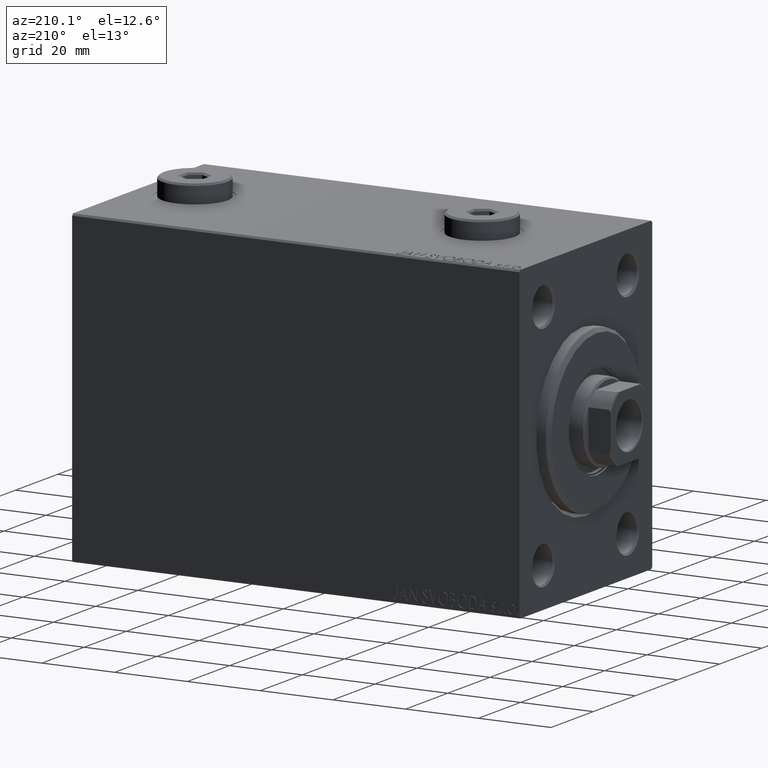
[diagram: clean part render]
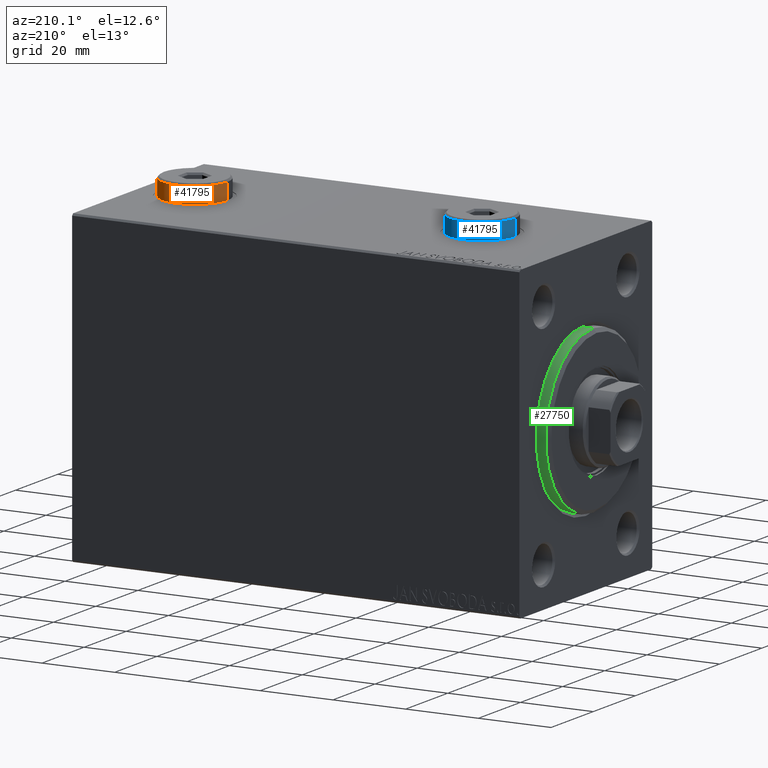
[diagram: same view with three faces highlighted in distinct colors, each labeled with its STEP entity id]
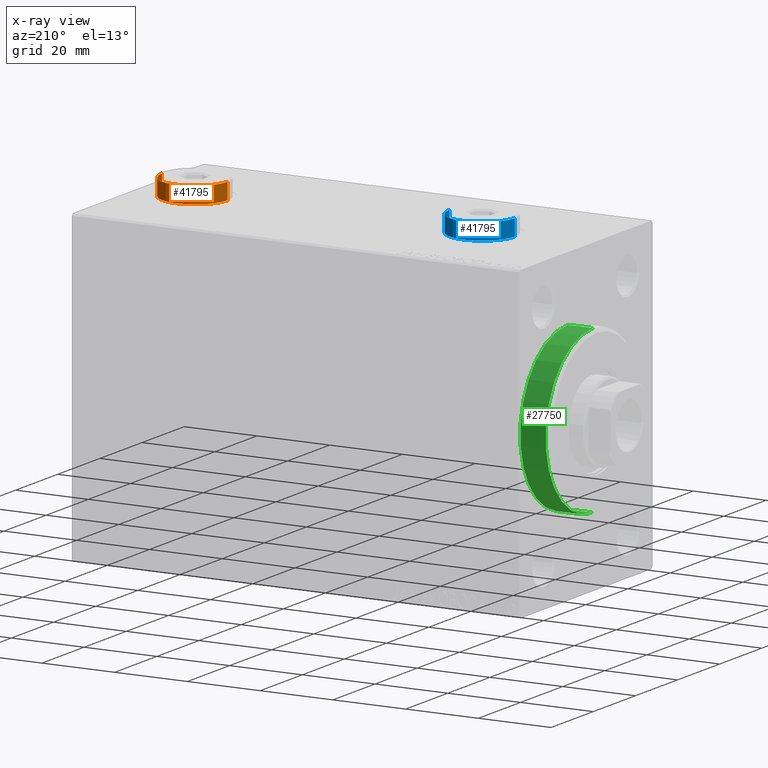
[diagram: x-ray of the same camera — body ghosted, the three highlighted faces saturated]
A machine part, auxiliary view with three faces highlighted in distinct colors.
The next image is the same camera in x-ray (body ghosted, the three faces saturated) — at least one of them is partly hidden behind the body in this view.
Their STEP definitions:

[orange] entity #41795 — the highlighted cylindrical surface (partial cylindrical patch) has radius 9 mm, axis along (-0, -0, -1).
#205 = ORIENTED_EDGE ( 'NONE', *, *, #16594, .F. ) ;
#2125 = DIRECTION ( 'NONE',  ( 1.000000000000000000, 0.000000000000000000, 0.000000000000000000 ) ) ;
#3153 = VERTEX_POINT ( 'NONE', #20915 ) ;
#4588 = LINE ( 'NONE', #19305, #42925 ) ;
#6964 = DIRECTION ( 'NONE',  ( -0.000000000000000000, -0.000000000000000000, -1.000000000000000000 ) ) ;
#10928 = CARTESIAN_POINT ( 'NONE',  ( 9.000000000000001776, 1.102182119232617911E-15, 0.000000000000000000 ) ) ;
#12365 = DIRECTION ( 'NONE',  ( 1.000000000000000000, 0.000000000000000000, 0.000000000000000000 ) ) ;
#15450 = CIRCLE ( 'NONE', #16186, 9.000000000000001776 ) ;
#15678 = CARTESIAN_POINT ( 'NONE',  ( 9.000000000000001776, 1.102182119232617911E-15, 4.500000000000006217 ) ) ;
#15753 = DIRECTION ( 'NONE',  ( -0.000000000000000000, -0.000000000000000000, -1.000000000000000000 ) ) ;
#16019 = EDGE_CURVE ( 'NONE', #16267, #21519, #20550, .T. ) ;
#16186 = AXIS2_PLACEMENT_3D ( 'NONE', #41495, #23296, #2125 ) ;
#16267 = VERTEX_POINT ( 'NONE', #15678 ) ;
#16487 = DIRECTION ( 'NONE',  ( 0.000000000000000000, 0.000000000000000000, -1.000000000000000000 ) ) ;
#16594 = EDGE_CURVE ( 'NONE', #3153, #17181, #4588, .T. ) ;
#17181 = VERTEX_POINT ( 'NONE', #41706 ) ;
#17480 = CIRCLE ( 'NONE', #43253, 9.000000000000001776 ) ;
#19305 = CARTESIAN_POINT ( 'NONE',  ( -9.000000000000001776, 0.000000000000000000, 5.000000000000000000 ) ) ;
#20550 = LINE ( 'NONE', #23777, #38483 ) ;
#20915 = CARTESIAN_POINT ( 'NONE',  ( -9.000000000000001776, 0.000000000000000000, 4.500000000000006217 ) ) ;
#21519 = VERTEX_POINT ( 'NONE', #10928 ) ;
#23296 = DIRECTION ( 'NONE',  ( 0.000000000000000000, 0.000000000000000000, 1.000000000000000000 ) ) ;
#23777 = CARTESIAN_POINT ( 'NONE',  ( 9.000000000000001776, 1.102182119232617911E-15, 5.000000000000000000 ) ) ;
#31118 = ORIENTED_EDGE ( 'NONE', *, *, #37578, .T. ) ;
#32662 = DIRECTION ( 'NONE',  ( -0.000000000000000000, -0.000000000000000000, -1.000000000000000000 ) ) ;
#33493 = CARTESIAN_POINT ( 'NONE',  ( 0.000000000000000000, 0.000000000000000000, 5.000000000000000000 ) ) ;
#36725 = CYLINDRICAL_SURFACE ( 'NONE', #38244, 9.000000000000001776 ) ;
#36948 = DIRECTION ( 'NONE',  ( -1.000000000000000000, 0.000000000000000000, 0.000000000000000000 ) ) ;
#37578 = EDGE_CURVE ( 'NONE', #3153, #16267, #17480, .T. ) ;
#37672 = CARTESIAN_POINT ( 'NONE',  ( 0.000000000000000000, 0.000000000000000000, 4.500000000000006217 ) ) ;
#37939 = ORIENTED_EDGE ( 'NONE', *, *, #16019, .T. ) ;
#38244 = AXIS2_PLACEMENT_3D ( 'NONE', #33493, #15753, #36948 ) ;
#38483 = VECTOR ( 'NONE', #6964, 1000.000000000000000 ) ;
#40190 = FACE_OUTER_BOUND ( 'NONE', #41632, .T. ) ;
#41495 = CARTESIAN_POINT ( 'NONE',  ( 0.000000000000000000, 0.000000000000000000, 0.000000000000000000 ) ) ;
#41632 = EDGE_LOOP ( 'NONE', ( #31118, #37939, #44556, #205 ) ) ;
#41706 = CARTESIAN_POINT ( 'NONE',  ( -9.000000000000001776, 0.000000000000000000, 0.000000000000000000 ) ) ;
#41795 = ADVANCED_FACE ( 'NONE', ( #40190 ), #36725, .T. ) ;
#42179 = EDGE_CURVE ( 'NONE', #21519, #17181, #15450, .T. ) ;
#42925 = VECTOR ( 'NONE', #32662, 1000.000000000000000 ) ;
#43253 = AXIS2_PLACEMENT_3D ( 'NONE', #37672, #16487, #12365 ) ;
#44556 = ORIENTED_EDGE ( 'NONE', *, *, #42179, .T. ) ;

[blue] entity #41795 — the highlighted cylindrical surface (partial cylindrical patch) has radius 9 mm, axis along (-0, -0, -1).
#205 = ORIENTED_EDGE ( 'NONE', *, *, #16594, .F. ) ;
#2125 = DIRECTION ( 'NONE',  ( 1.000000000000000000, 0.000000000000000000, 0.000000000000000000 ) ) ;
#3153 = VERTEX_POINT ( 'NONE', #20915 ) ;
#4588 = LINE ( 'NONE', #19305, #42925 ) ;
#6964 = DIRECTION ( 'NONE',  ( -0.000000000000000000, -0.000000000000000000, -1.000000000000000000 ) ) ;
#10928 = CARTESIAN_POINT ( 'NONE',  ( 9.000000000000001776, 1.102182119232617911E-15, 0.000000000000000000 ) ) ;
#12365 = DIRECTION ( 'NONE',  ( 1.000000000000000000, 0.000000000000000000, 0.000000000000000000 ) ) ;
#15450 = CIRCLE ( 'NONE', #16186, 9.000000000000001776 ) ;
#15678 = CARTESIAN_POINT ( 'NONE',  ( 9.000000000000001776, 1.102182119232617911E-15, 4.500000000000006217 ) ) ;
#15753 = DIRECTION ( 'NONE',  ( -0.000000000000000000, -0.000000000000000000, -1.000000000000000000 ) ) ;
#16019 = EDGE_CURVE ( 'NONE', #16267, #21519, #20550, .T. ) ;
#16186 = AXIS2_PLACEMENT_3D ( 'NONE', #41495, #23296, #2125 ) ;
#16267 = VERTEX_POINT ( 'NONE', #15678 ) ;
#16487 = DIRECTION ( 'NONE',  ( 0.000000000000000000, 0.000000000000000000, -1.000000000000000000 ) ) ;
#16594 = EDGE_CURVE ( 'NONE', #3153, #17181, #4588, .T. ) ;
#17181 = VERTEX_POINT ( 'NONE', #41706 ) ;
#17480 = CIRCLE ( 'NONE', #43253, 9.000000000000001776 ) ;
#19305 = CARTESIAN_POINT ( 'NONE',  ( -9.000000000000001776, 0.000000000000000000, 5.000000000000000000 ) ) ;
#20550 = LINE ( 'NONE', #23777, #38483 ) ;
#20915 = CARTESIAN_POINT ( 'NONE',  ( -9.000000000000001776, 0.000000000000000000, 4.500000000000006217 ) ) ;
#21519 = VERTEX_POINT ( 'NONE', #10928 ) ;
#23296 = DIRECTION ( 'NONE',  ( 0.000000000000000000, 0.000000000000000000, 1.000000000000000000 ) ) ;
#23777 = CARTESIAN_POINT ( 'NONE',  ( 9.000000000000001776, 1.102182119232617911E-15, 5.000000000000000000 ) ) ;
#31118 = ORIENTED_EDGE ( 'NONE', *, *, #37578, .T. ) ;
#32662 = DIRECTION ( 'NONE',  ( -0.000000000000000000, -0.000000000000000000, -1.000000000000000000 ) ) ;
#33493 = CARTESIAN_POINT ( 'NONE',  ( 0.000000000000000000, 0.000000000000000000, 5.000000000000000000 ) ) ;
#36725 = CYLINDRICAL_SURFACE ( 'NONE', #38244, 9.000000000000001776 ) ;
#36948 = DIRECTION ( 'NONE',  ( -1.000000000000000000, 0.000000000000000000, 0.000000000000000000 ) ) ;
#37578 = EDGE_CURVE ( 'NONE', #3153, #16267, #17480, .T. ) ;
#37672 = CARTESIAN_POINT ( 'NONE',  ( 0.000000000000000000, 0.000000000000000000, 4.500000000000006217 ) ) ;
#37939 = ORIENTED_EDGE ( 'NONE', *, *, #16019, .T. ) ;
#38244 = AXIS2_PLACEMENT_3D ( 'NONE', #33493, #15753, #36948 ) ;
#38483 = VECTOR ( 'NONE', #6964, 1000.000000000000000 ) ;
#40190 = FACE_OUTER_BOUND ( 'NONE', #41632, .T. ) ;
#41495 = CARTESIAN_POINT ( 'NONE',  ( 0.000000000000000000, 0.000000000000000000, 0.000000000000000000 ) ) ;
#41632 = EDGE_LOOP ( 'NONE', ( #31118, #37939, #44556, #205 ) ) ;
#41706 = CARTESIAN_POINT ( 'NONE',  ( -9.000000000000001776, 0.000000000000000000, 0.000000000000000000 ) ) ;
#41795 = ADVANCED_FACE ( 'NONE', ( #40190 ), #36725, .T. ) ;
#42179 = EDGE_CURVE ( 'NONE', #21519, #17181, #15450, .T. ) ;
#42925 = VECTOR ( 'NONE', #32662, 1000.000000000000000 ) ;
#43253 = AXIS2_PLACEMENT_3D ( 'NONE', #37672, #16487, #12365 ) ;
#44556 = ORIENTED_EDGE ( 'NONE', *, *, #42179, .T. ) ;

[green] entity #27750 — the highlighted cylindrical surface (partial cylindrical patch) has radius 22.5 mm, axis along (1, -0, -0).
#2034 = EDGE_CURVE ( 'NONE', #33126, #3743, #20868, .T. ) ;
#2295 = EDGE_CURVE ( 'NONE', #33790, #2986, #22353, .T. ) ;
#2302 = CARTESIAN_POINT ( 'NONE',  ( 1.999999999999999112, 2.755455298081545172E-15, -22.50000000000000355 ) ) ;
#2986 = VERTEX_POINT ( 'NONE', #23484 ) ;
#3743 = VERTEX_POINT ( 'NONE', #29197 ) ;
#7699 = LINE ( 'NONE', #36019, #21491 ) ;
#9836 = ORIENTED_EDGE ( 'NONE', *, *, #2034, .T. ) ;
#12082 = AXIS2_PLACEMENT_3D ( 'NONE', #41072, #23545, #23765 ) ;
#13901 = CARTESIAN_POINT ( 'NONE',  ( -5.000000000000000000, 2.755455298081545172E-15, -22.50000000000000355 ) ) ;
#13929 = CARTESIAN_POINT ( 'NONE',  ( 3.000000000000000000, 0.000000000000000000, 22.50000000000000355 ) ) ;
#14006 = DIRECTION ( 'NONE',  ( 0.000000000000000000, 0.000000000000000000, 1.000000000000000000 ) ) ;
#14436 = DIRECTION ( 'NONE',  ( 0.000000000000000000, 0.000000000000000000, 1.000000000000000000 ) ) ;
#18358 = CYLINDRICAL_SURFACE ( 'NONE', #30589, 22.50000000000000355 ) ;
#18573 = DIRECTION ( 'NONE',  ( -1.000000000000000000, 0.000000000000000000, 0.000000000000000000 ) ) ;
#19932 = LINE ( 'NONE', #13929, #30344 ) ;
#20868 = CIRCLE ( 'NONE', #12082, 22.50000000000000355 ) ;
#21491 = VECTOR ( 'NONE', #32093, 1000.000000000000000 ) ;
#22353 = CIRCLE ( 'NONE', #26777, 22.50000000000000355 ) ;
#23484 = CARTESIAN_POINT ( 'NONE',  ( -5.000000000000000000, 0.000000000000000000, 22.50000000000000355 ) ) ;
#23545 = DIRECTION ( 'NONE',  ( -1.000000000000000000, 0.000000000000000000, 0.000000000000000000 ) ) ;
#23765 = DIRECTION ( 'NONE',  ( 0.000000000000000000, 0.000000000000000000, -1.000000000000000000 ) ) ;
#25478 = CARTESIAN_POINT ( 'NONE',  ( -5.000000000000000000, 0.000000000000000000, 0.000000000000000000 ) ) ;
#26621 = ORIENTED_EDGE ( 'NONE', *, *, #44975, .T. ) ;
#26777 = AXIS2_PLACEMENT_3D ( 'NONE', #25478, #18573, #14436 ) ;
#27750 = ADVANCED_FACE ( 'NONE', ( #42788 ), #18358, .T. ) ;
#28725 = CARTESIAN_POINT ( 'NONE',  ( 3.000000000000000000, 0.000000000000000000, 0.000000000000000000 ) ) ;
#29197 = CARTESIAN_POINT ( 'NONE',  ( 1.999999999999999112, 0.000000000000000000, 22.50000000000000355 ) ) ;
#30105 = EDGE_LOOP ( 'NONE', ( #36391, #9836, #26621, #45201 ) ) ;
#30344 = VECTOR ( 'NONE', #38346, 1000.000000000000000 ) ;
#30589 = AXIS2_PLACEMENT_3D ( 'NONE', #28725, #35637, #14006 ) ;
#32093 = DIRECTION ( 'NONE',  ( -1.000000000000000000, -0.000000000000000000, -0.000000000000000000 ) ) ;
#33126 = VERTEX_POINT ( 'NONE', #2302 ) ;
#33790 = VERTEX_POINT ( 'NONE', #13901 ) ;
#35637 = DIRECTION ( 'NONE',  ( -1.000000000000000000, -0.000000000000000000, -0.000000000000000000 ) ) ;
#36019 = CARTESIAN_POINT ( 'NONE',  ( 3.000000000000000000, 2.755455298081545172E-15, -22.50000000000000355 ) ) ;
#36391 = ORIENTED_EDGE ( 'NONE', *, *, #45141, .F. ) ;
#38346 = DIRECTION ( 'NONE',  ( -1.000000000000000000, -0.000000000000000000, -0.000000000000000000 ) ) ;
#41072 = CARTESIAN_POINT ( 'NONE',  ( 1.999999999999999112, 0.000000000000000000, 0.000000000000000000 ) ) ;
#42788 = FACE_OUTER_BOUND ( 'NONE', #30105, .T. ) ;
#44975 = EDGE_CURVE ( 'NONE', #3743, #2986, #19932, .T. ) ;
#45141 = EDGE_CURVE ( 'NONE', #33126, #33790, #7699, .T. ) ;
#45201 = ORIENTED_EDGE ( 'NONE', *, *, #2295, .F. ) ;